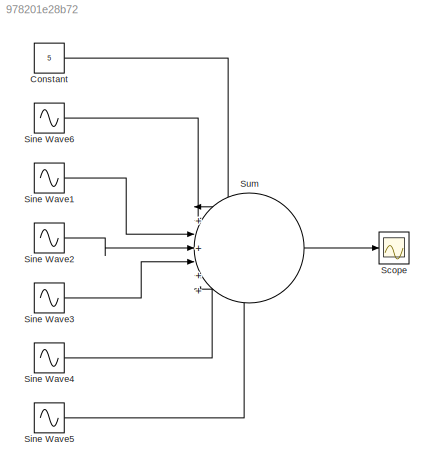
MODEL slx_978201e28b72
KIND model
CONFIG AbsTol = auto
CONFIG EnableMultiTasking = off
CONFIG FixedStep = 0.001
CONFIG MaxStep = auto
CONFIG MinStep = auto
CONFIG RelTol = 1e-3
CONFIG SampleTimeConstraint = Unconstrained
CONFIG SolverName = ode8
CONFIG StartTime = 0
CONFIG StopTime = 19
BLOCK [Constant] Constant
  Value = 5
BLOCK [Scope] Scope
  Floating = off
  NumInputPorts = 1
  ScopeSpecificationString = Simulink.scopes.TimeScopeBlockCfg('CurrentConfiguration', extmgr.ConfigurationSet(extmgr.Configuration('Core','General UI',true),extmgr.Configuration('Core','Source UI',true),extmgr.Configuration('Sources','WiredSimulink',true),extmgr.Configuration('Visuals','Time Domain',true,'SerializedDisplays',{struct('MinYLimReal','3.52337','MaxYLimReal','6.47663','YLabelReal','','MinYLimMag','3.52337','MaxYL...<+1440ch>
BLOCK [Sin] Sine Wave1
  Amplitude = 4/(3*pi)
  Frequency = 3
  Phase = 2*pi
  SampleTime = 0.001
BLOCK [Sin] Sine Wave2
  Amplitude = 4/(5*pi)
  Frequency = 5
  Phase = 2*pi
  SampleTime = 0.001
BLOCK [Sin] Sine Wave3
  Amplitude = 4/(7*pi)
  Frequency = 7
  Phase = 2*pi
  SampleTime = 0.001
BLOCK [Sin] Sine Wave4
  Amplitude = 4/(9*pi)
  Frequency = 9
  Phase = 2*pi
  SampleTime = 0.001
BLOCK [Sin] Sine Wave5
  Amplitude = 4/(11*pi)
  Frequency = 11
  Phase = 2*pi
  SampleTime = 0.001
BLOCK [Sin] Sine Wave6
  Amplitude = 4/pi
  Phase = 2*pi
  SampleTime = 0.001
BLOCK [Sum] Sum
  Inputs = |+|+|+|+|+|+|+
LINE Constant:1 -> Sum:1
LINE Sine Wave1:1 -> Sum:3
LINE Sine Wave2:1 -> Sum:4
LINE Sine Wave3:1 -> Sum:5
LINE Sine Wave4:1 -> Sum:6
LINE Sine Wave5:1 -> Sum:7
LINE Sine Wave6:1 -> Sum:2
LINE Sum:1 -> Scope:1
